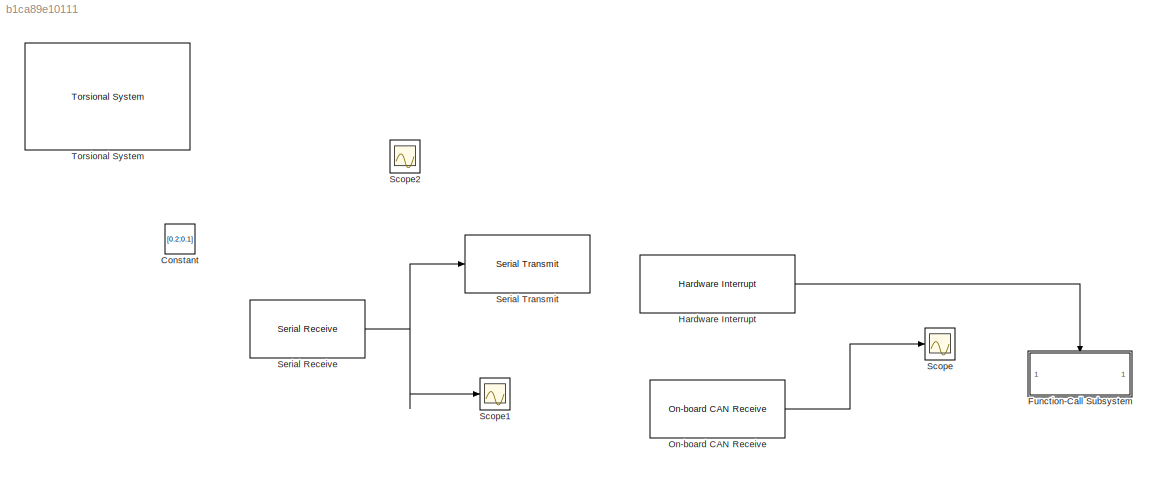
MODEL slx_b1ca89e10111
KIND model
CONFIG AbsTol = auto
CONFIG EnableMultiTasking = on
CONFIG FixedStep = 0.001
CONFIG MaxStep = auto
CONFIG MinStep = auto
CONFIG RelTol = 1e-3
CONFIG SampleTimeConstraint = Unconstrained
CONFIG SolverName = FixedStepAuto
CONFIG StartTime = 0.0
CONFIG StopTime = 2
BLOCK [Constant] Constant
  Value = [0.2;0.1]
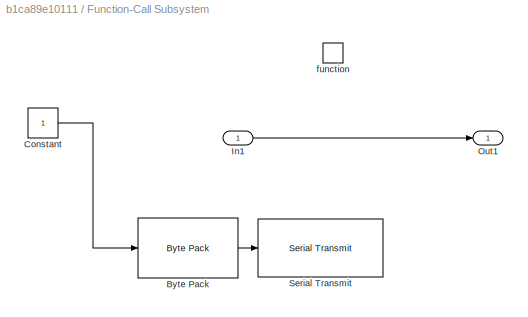
BLOCK [SubSystem] Function-Call Subsystem
  Commented = on
  TreatAsAtomicUnit = on
BLOCK [Reference] Function-Call Subsystem/Byte Pack  REF=svdutilitieslib/Byte Pack
  SourceBlock = svdutilitieslib/Byte Pack
  SourceType = Byte pack
BLOCK [Constant] Function-Call Subsystem/Constant
BLOCK [Inport] Function-Call Subsystem/In1
BLOCK [Outport] Function-Call Subsystem/Out1
BLOCK [Reference] Function-Call Subsystem/Serial Transmit  REF=arduinolib/Serial Transmit
  SourceBlock = arduinolib/Serial Transmit
  SourceType = Arduino Serial Transmit
BLOCK [TriggerPort] Function-Call Subsystem/function
  StatesWhenEnabling = held
  TriggerType = function-call
  VariantControl = (inherit)
BLOCK [Reference] Hardware Interrupt  REF=arduinoteensy4lib/Hardware Interrupt
  Commented = on
  SourceBlock = arduinoteensy4lib/Hardware Interrupt
  SourceType = HardwareInterrupt
  UserDataPersistent = on
BLOCK [Reference] On-board CAN Receive  REF=arduinocommunicationlib/On-board CAN Receive
  Commented = on
  SourceBlock = arduinocommunicationlib/On-board CAN Receive
  SourceType = codertarget.arduinobase.internal.arduinoOnboardCANReceive
BLOCK [Scope] Scope
  Commented = on
  Floating = off
  GraphicalSettings = {"GraphicalSettings":{"LegacySettings":true,"Style":{"Style":{"PlotType":"Auto"}}}}
  NumInputPorts = 1
  WasSavedAsWebScope = on
BLOCK [Scope] Scope1
  DataLoggingVariableName = ScopeData1
  Floating = off
  GraphicalSettings = {"GraphicalSettings":{"LegacySettings":true,"Style":{"Style":{"PlotType":"Auto"}}}}
  NumInputPorts = 1
  WasSavedAsWebScope = on
BLOCK [Scope] Scope2
  ActiveDisplayYMaximum = 5.4983833307510257E+48
  ActiveDisplayYMinimum = -4.0568072356035728E+48
  DataLoggingVariableName = ScopeData2
  Floating = off
  GraphicalSettings = {"Style":{"BackgroundColor":[0.12941176470588237,0.12941176470588237,0.12941176470588237],"AxesColor":[0.07058823529411765,0.07058823529411765,0.07058823529411765],"LabelsColor":[0.8509803921568627,0.8509803921568627,0.8509803921568627],"PreserveColors":false,"Visible":[true,true,true,true,true,true,true,true,true],"LineStyle":["-","-","-","-","-","-","-","-","-"],"LineWidth":[1.5,1.5,1.5,1.5,1.5,...<+3082ch>
  MultipleDisplayCache = [{"MaxYLimMag":2.7996335574743894E+49,"MaxYLimReal":5.4983833307510257E+48,"MinYLimMag":0,"MinYLimReal":-4.0568072356035728E+48,"PlotAsMagnitudePhase":false,"ShowGrid":true,"ShowLegend":false,"Title":"%<SignalLabel>","YLabel":""}]
  NumInputPorts = 2
  ScopeFrameLocation = window
  WasSavedAsWebScope = on
  WindowPosition = [680.000000,525.000000,1114.000000,420.000000,]
BLOCK [Reference] Serial Receive  REF=arduinolib/Serial Receive
  SourceBlock = arduinolib/Serial Receive
  SourceType = Arduino Serial Receive
BLOCK [Reference] Serial Transmit  REF=arduinolib/Serial Transmit
  SourceBlock = arduinolib/Serial Transmit
  SourceType = Arduino Serial Transmit
BLOCK [Reference] Torsional System  REF=ecplib/Torsional System
  SourceBlock = ecplib/Torsional System
  SourceProductName = ECP Toolbox
  SourceType = ecpBlock
LINE Function-Call Subsystem/Byte Pack:1 -> Function-Call Subsystem/Serial Transmit:1
LINE Function-Call Subsystem/Constant:1 -> Function-Call Subsystem/Byte Pack:1
LINE Function-Call Subsystem/In1:1 -> Function-Call Subsystem/Out1:1
LINE Hardware Interrupt:1 -> Function-Call Subsystem:trigger
LINE On-board CAN Receive:1 -> Scope:1
NET Serial Receive:1 -> Scope1:1, Serial Transmit:1
note: NET lines group one-source signal fan-out (src -> all destinations, sorted); 1:1 wires keep LINE
